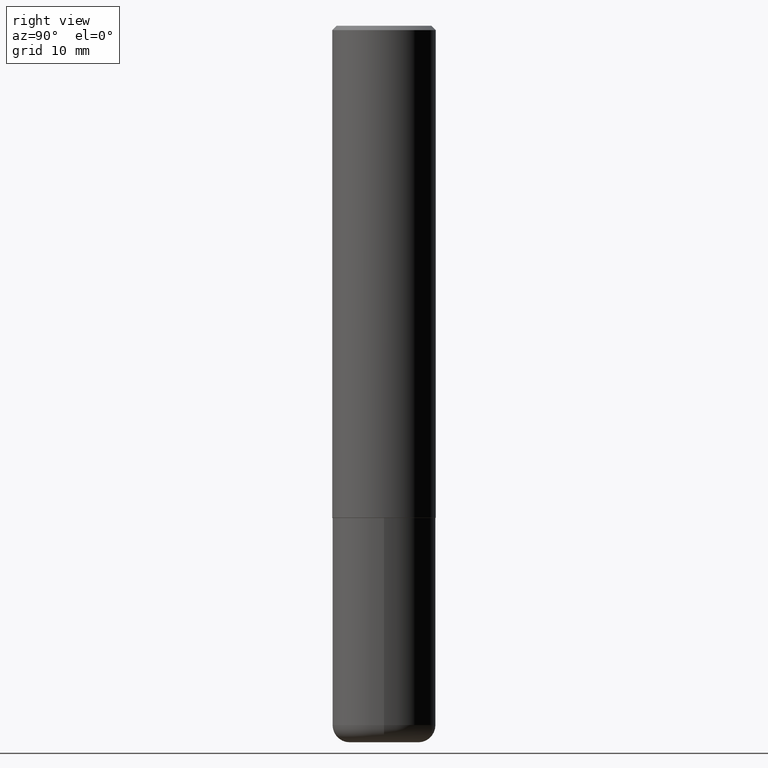
[diagram: clean part render]
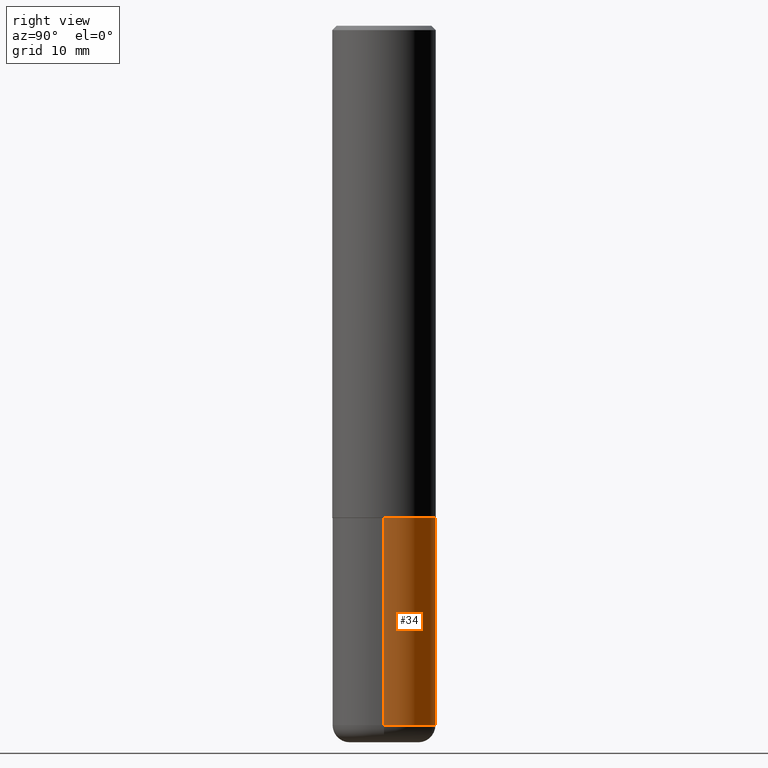
[diagram: same view with one face highlighted and labeled with its STEP entity id]
A machine part, right view. The second image highlights one B-rep face of the part: STEP entity #34.
In plain terms, the highlighted cylindrical surface (partial cylindrical patch) has radius 5.9995 mm, axis along (-0, 0, 1).
Its self-contained STEP definition (entity closure, byte-faithful):
#6 = CARTESIAN_POINT ( 'NONE',  ( 0.2362000000000001043, -1.278370977404028805E-14, -3.189000000000000501 ) ) ;
#10 = CARTESIAN_POINT ( 'NONE',  ( 7.798600022924401307E-29, -1.113433398957079310E-14, -3.189000000000000501 ) ) ;
#34 = ADVANCED_FACE ( 'NONE', ( #98 ), #203, .T. ) ;
#37 = LINE ( 'NONE', #264, #305 ) ;
#46 = CARTESIAN_POINT ( 'NONE',  ( -0.2362000000000001043, -9.456032047705438285E-15, -3.189000000000000501 ) ) ;
#55 = VERTEX_POINT ( 'NONE', #6 ) ;
#60 = EDGE_CURVE ( 'NONE', #290, #119, #37, .T. ) ;
#68 = DIRECTION ( 'NONE',  ( -2.445468806185136877E-29, 3.491481338843145188E-15, 1.000000000000000000 ) ) ;
#70 = AXIS2_PLACEMENT_3D ( 'NONE', #258, #325, #166 ) ;
#78 = EDGE_CURVE ( 'NONE', #238, #119, #111, .T. ) ;
#92 = ORIENTED_EDGE ( 'NONE', *, *, #60, .T. ) ;
#93 = DIRECTION ( 'NONE',  ( -2.445468806185136877E-29, 3.491481338843145188E-15, 1.000000000000000000 ) ) ;
#98 = FACE_OUTER_BOUND ( 'NONE', #218, .T. ) ;
#105 = CARTESIAN_POINT ( 'NONE',  ( -0.2362000000000000766, -7.806481689168991326E-15, -2.244100000000000428 ) ) ;
#111 = CIRCLE ( 'NONE', #70, 0.2362000000000000210 ) ;
#115 = ORIENTED_EDGE ( 'NONE', *, *, #142, .F. ) ;
#119 = VERTEX_POINT ( 'NONE', #105 ) ;
#142 = EDGE_CURVE ( 'NONE', #55, #238, #333, .T. ) ;
#149 = EDGE_CURVE ( 'NONE', #55, #290, #306, .T. ) ;
#158 = ORIENTED_EDGE ( 'NONE', *, *, #78, .F. ) ;
#166 = DIRECTION ( 'NONE',  ( 1.000000000000000000, -6.982962677686268288E-15, 0.000000000000000000 ) ) ;
#172 = DIRECTION ( 'NONE',  ( 1.000000000000000000, -6.982962677686266711E-15, 4.876176775795936353E-29 ) ) ;
#179 = CARTESIAN_POINT ( 'NONE',  ( 0.2362000000000000210, -9.484609056967400443E-15, -2.244100000000000428 ) ) ;
#203 = CYLINDRICAL_SURFACE ( 'NONE', #383, 0.2361999999999999933 ) ;
#205 = CARTESIAN_POINT ( 'NONE',  ( 0.2361999999999999933, -1.649375784469496131E-15, 1.151752954443000088E-29 ) ) ;
#218 = EDGE_LOOP ( 'NONE', ( #346, #92, #158, #115 ) ) ;
#235 = CARTESIAN_POINT ( 'NONE',  ( 0.000000000000000000, 0.000000000000000000, 0.000000000000000000 ) ) ;
#238 = VERTEX_POINT ( 'NONE', #179 ) ;
#258 = CARTESIAN_POINT ( 'NONE',  ( 5.487876547960065873E-29, -7.835233272497903917E-15, -2.244100000000000428 ) ) ;
#264 = CARTESIAN_POINT ( 'NONE',  ( -0.2361999999999999933, 1.678301941865356591E-15, -1.161852468318208757E-29 ) ) ;
#288 = VECTOR ( 'NONE', #93, 39.37007874015748143 ) ;
#290 = VERTEX_POINT ( 'NONE', #46 ) ;
#299 = DIRECTION ( 'NONE',  ( 1.000000000000000000, -6.982962677686265133E-15, 0.000000000000000000 ) ) ;
#305 = VECTOR ( 'NONE', #68, 39.37007874015748143 ) ;
#306 = CIRCLE ( 'NONE', #401, 0.2361999999999999933 ) ;
#325 = DIRECTION ( 'NONE',  ( -2.445468806185136597E-29, 3.491481338843145583E-15, 1.000000000000000000 ) ) ;
#333 = LINE ( 'NONE', #205, #288 ) ;
#346 = ORIENTED_EDGE ( 'NONE', *, *, #149, .T. ) ;
#383 = AXIS2_PLACEMENT_3D ( 'NONE', #235, #390, #172 ) ;
#390 = DIRECTION ( 'NONE',  ( -2.445468806185136597E-29, 3.491481338843145583E-15, 1.000000000000000000 ) ) ;
#394 = DIRECTION ( 'NONE',  ( -2.445468806185136597E-29, 3.491481338843145583E-15, 1.000000000000000000 ) ) ;
#401 = AXIS2_PLACEMENT_3D ( 'NONE', #10, #394, #299 ) ;